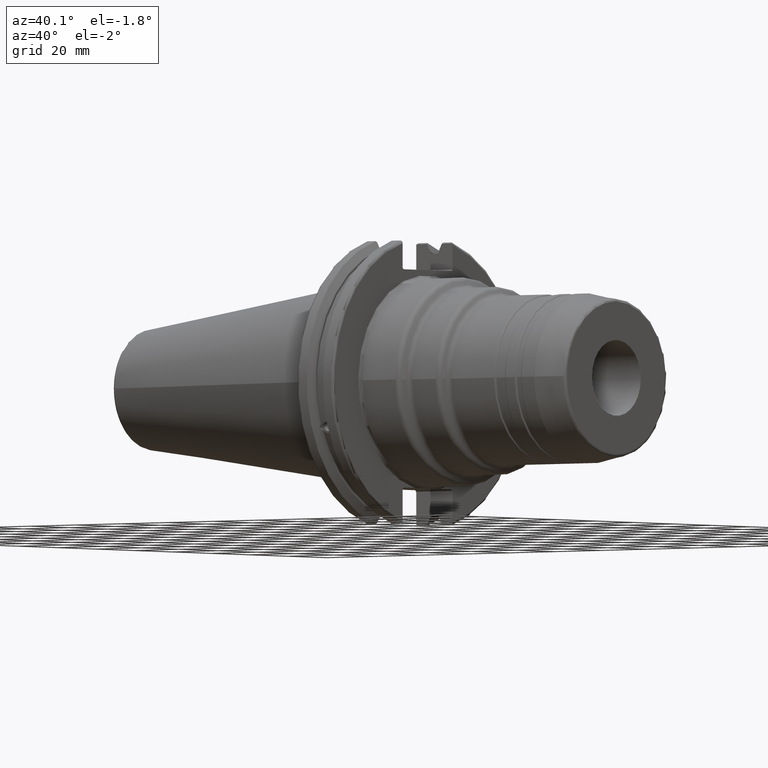
[diagram: clean part render]
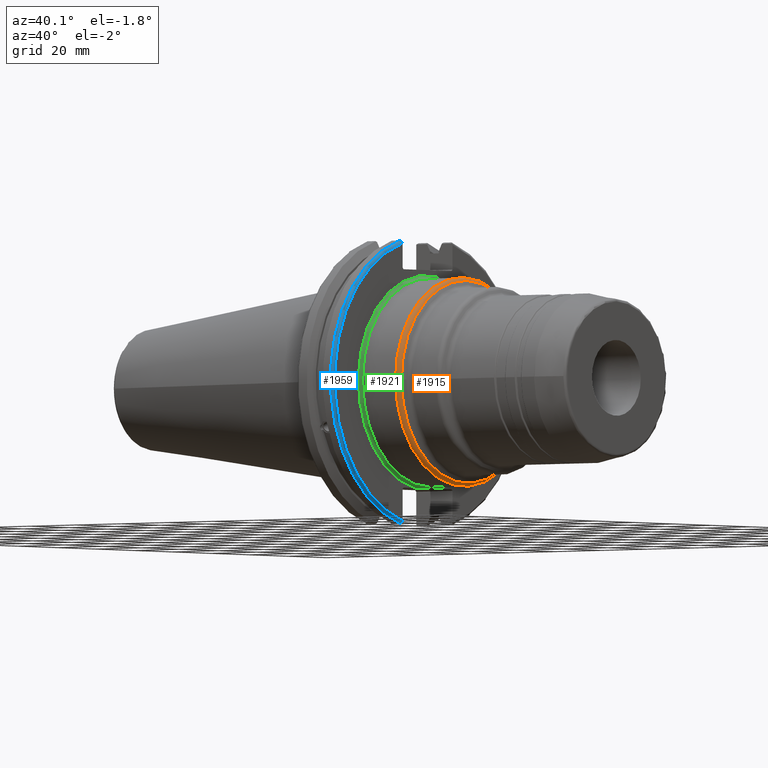
[diagram: same view with three faces highlighted in distinct colors, each labeled with its STEP entity id]
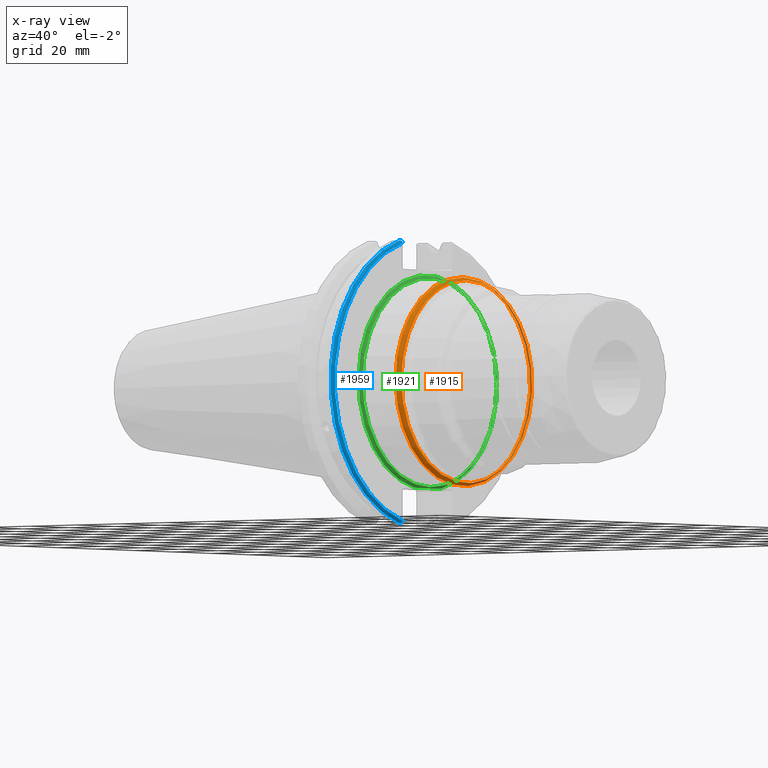
[diagram: x-ray of the same camera — body ghosted, the three highlighted faces saturated]
A machine part, auxiliary view with three faces highlighted in distinct colors.
The next image is the same camera in x-ray (body ghosted, the three faces saturated) — at least one of them is partly hidden behind the body in this view.
Their STEP definitions:

[orange] entity #1915 — the highlighted toroidal blend (fillet) surface has major radius 32.95 mm and minor (blend) radius 2 mm.
#81=TOROIDAL_SURFACE('',#2112,32.95,2.);
#195=FACE_OUTER_BOUND('',#307,.T.);
#307=EDGE_LOOP('',(#1412,#1413,#1414,#1415,#1416,#1417));
#679=CIRCLE('',#2108,33.95);
#680=CIRCLE('',#2109,33.95);
#682=CIRCLE('',#2113,2.);
#683=CIRCLE('',#2114,34.95);
#684=CIRCLE('',#2115,34.95);
#810=VERTEX_POINT('',#3104);
#811=VERTEX_POINT('',#3106);
#812=VERTEX_POINT('',#3112);
#813=VERTEX_POINT('',#3114);
#1036=EDGE_CURVE('',#811,#810,#679,.T.);
#1037=EDGE_CURVE('',#810,#811,#680,.T.);
#1039=EDGE_CURVE('',#811,#812,#682,.T.);
#1040=EDGE_CURVE('',#812,#813,#683,.T.);
#1041=EDGE_CURVE('',#813,#812,#684,.T.);
#1412=ORIENTED_EDGE('',*,*,#1036,.T.);
#1413=ORIENTED_EDGE('',*,*,#1037,.T.);
#1414=ORIENTED_EDGE('',*,*,#1039,.T.);
#1415=ORIENTED_EDGE('',*,*,#1040,.T.);
#1416=ORIENTED_EDGE('',*,*,#1041,.T.);
#1417=ORIENTED_EDGE('',*,*,#1039,.F.);
#1915=ADVANCED_FACE('',(#195),#81,.T.);
#2108=AXIS2_PLACEMENT_3D('',#3107,#2460,#2461);
#2109=AXIS2_PLACEMENT_3D('',#3108,#2462,#2463);
#2112=AXIS2_PLACEMENT_3D('',#3111,#2468,#2469);
#2113=AXIS2_PLACEMENT_3D('',#3113,#2470,#2471);
#2114=AXIS2_PLACEMENT_3D('',#3115,#2472,#2473);
#2115=AXIS2_PLACEMENT_3D('',#3116,#2474,#2475);
#2460=DIRECTION('center_axis',(-1.,0.,0.));
#2461=DIRECTION('ref_axis',(0.,-1.,3.06161699786838E-17));
#2462=DIRECTION('center_axis',(-1.,0.,0.));
#2463=DIRECTION('ref_axis',(0.,-1.,3.06161699786838E-17));
#2468=DIRECTION('center_axis',(1.,0.,0.));
#2469=DIRECTION('ref_axis',(0.,0.,-1.));
#2470=DIRECTION('center_axis',(0.,-1.,-1.22464679914735E-16));
#2471=DIRECTION('ref_axis',(0.,-1.22464679914735E-16,1.));
#2472=DIRECTION('center_axis',(1.,0.,0.));
#2473=DIRECTION('ref_axis',(0.,-1.,1.83697019872103E-16));
#2474=DIRECTION('center_axis',(1.,0.,0.));
#2475=DIRECTION('ref_axis',(0.,-1.,1.83697019872103E-16));
#3104=CARTESIAN_POINT('',(36.1854918404854,-33.95,-4.15767588310526E-15));
#3106=CARTESIAN_POINT('',(36.1854918404854,-4.15767588310526E-15,33.95));
#3107=CARTESIAN_POINT('Origin',(36.1854918404854,0.,-5.19709485388158E-15));
#3108=CARTESIAN_POINT('Origin',(36.1854918404854,0.,-5.19709485388158E-15));
#3111=CARTESIAN_POINT('Origin',(34.4534410329165,0.,0.));
#3112=CARTESIAN_POINT('',(34.4534410329165,-4.28014056302E-15,34.95));
#3113=CARTESIAN_POINT('Origin',(34.4534410329165,-4.03521120319053E-15,
32.95));
#3114=CARTESIAN_POINT('',(34.4534410329165,-34.95,-4.28014056302E-15));
#3115=CARTESIAN_POINT('Origin',(34.4534410329165,0.,0.));
#3116=CARTESIAN_POINT('Origin',(34.4534410329165,0.,0.));

[blue] entity #1959 — the highlighted toroidal blend (fillet) surface has major radius 48.2125 mm and minor (blend) radius 1 mm.
#87=TOROIDAL_SURFACE('',#2210,48.2125,1.);
#158=B_SPLINE_CURVE_WITH_KNOTS('',3,(#3750,#3751,#3752,#3753,#3754,#3755),
 .UNSPECIFIED.,.F.,.F.,(4,2,4),(0.097707143645253,0.112358403262293,0.150882178076498),
 .UNSPECIFIED.);
#159=B_SPLINE_CURVE_WITH_KNOTS('',3,(#3757,#3758,#3759,#3760,#3761,#3762),
 .UNSPECIFIED.,.F.,.F.,(4,2,4),(0.452859694247731,0.491383469061936,0.506034728678978),
 .UNSPECIFIED.);
#160=B_SPLINE_CURVE_WITH_KNOTS('',3,(#3764,#3765,#3766,#3767,#3768,#3769,
#3770,#3771),.UNSPECIFIED.,.F.,.F.,(4,2,2,4),(-0.104075769062722,-0.0730268503455477,
-0.0343639873656263,0.),.UNSPECIFIED.);
#161=B_SPLINE_CURVE_WITH_KNOTS('',3,(#3774,#3775,#3776,#3777,#3778,#3779,
#3780,#3781),.UNSPECIFIED.,.F.,.F.,(4,2,2,4),(0.,0.0364336453281818,0.0778720357014993,
0.104197480645881),.UNSPECIFIED.);
#239=FACE_OUTER_BOUND('',#365,.T.);
#365=EDGE_LOOP('',(#1656,#1657,#1658,#1659,#1660,#1661));
#733=CIRCLE('',#2209,48.2125);
#734=CIRCLE('',#2211,49.2125);
#919=VERTEX_POINT('',#3739);
#920=VERTEX_POINT('',#3741);
#923=VERTEX_POINT('',#3749);
#924=VERTEX_POINT('',#3756);
#925=VERTEX_POINT('',#3763);
#926=VERTEX_POINT('',#3772);
#1182=EDGE_CURVE('',#920,#919,#733,.T.);
#1186=EDGE_CURVE('',#923,#920,#158,.T.);
#1187=EDGE_CURVE('',#919,#924,#159,.T.);
#1188=EDGE_CURVE('',#924,#925,#160,.T.);
#1189=EDGE_CURVE('',#925,#926,#734,.T.);
#1190=EDGE_CURVE('',#926,#923,#161,.T.);
#1656=ORIENTED_EDGE('',*,*,#1186,.T.);
#1657=ORIENTED_EDGE('',*,*,#1182,.T.);
#1658=ORIENTED_EDGE('',*,*,#1187,.T.);
#1659=ORIENTED_EDGE('',*,*,#1188,.T.);
#1660=ORIENTED_EDGE('',*,*,#1189,.T.);
#1661=ORIENTED_EDGE('',*,*,#1190,.T.);
#1959=ADVANCED_FACE('',(#239),#87,.T.);
#2209=AXIS2_PLACEMENT_3D('',#3742,#2717,#2718);
#2210=AXIS2_PLACEMENT_3D('',#3748,#2722,#2723);
#2211=AXIS2_PLACEMENT_3D('',#3773,#2724,#2725);
#2717=DIRECTION('center_axis',(-1.,0.,0.));
#2718=DIRECTION('ref_axis',(0.,-1.,1.60812264967664E-16));
#2722=DIRECTION('center_axis',(1.,0.,0.));
#2723=DIRECTION('ref_axis',(0.,0.,-1.));
#2724=DIRECTION('center_axis',(1.,0.,0.));
#2725=DIRECTION('ref_axis',(0.,-1.,1.60812264967664E-16));
#3739=CARTESIAN_POINT('',(19.05,-12.95,46.4407434937254));
#3741=CARTESIAN_POINT('',(19.05,-12.95,-46.4407434937254));
#3742=CARTESIAN_POINT('Origin',(19.05,0.,0.));
#3748=CARTESIAN_POINT('Origin',(18.05,0.,0.));
#3749=CARTESIAN_POINT('',(18.9055020570566,-12.95,-46.9780755322917));
#3750=CARTESIAN_POINT('Ctrl Pts',(18.9055020570566,-12.95,-46.9780755322917));
#3751=CARTESIAN_POINT('Ctrl Pts',(18.9322353702005,-12.95,-46.9322596399785));
#3752=CARTESIAN_POINT('Ctrl Pts',(18.9549831813775,-12.95,-46.8849952622217));
#3753=CARTESIAN_POINT('Ctrl Pts',(19.0209992543299,-12.95,-46.7204975987179));
#3754=CARTESIAN_POINT('Ctrl Pts',(19.05,-12.95,-46.5691560764394));
#3755=CARTESIAN_POINT('Ctrl Pts',(19.05,-12.95,-46.4407434937254));
#3756=CARTESIAN_POINT('',(18.9055020570566,-12.95,46.9780755322918));
#3757=CARTESIAN_POINT('Ctrl Pts',(19.05,-12.95,46.4407434937254));
#3758=CARTESIAN_POINT('Ctrl Pts',(19.05,-12.95,46.5691560764394));
#3759=CARTESIAN_POINT('Ctrl Pts',(19.0209992543299,-12.95,46.7204975987179));
#3760=CARTESIAN_POINT('Ctrl Pts',(18.9549831813775,-12.95,46.8849952622217));
#3761=CARTESIAN_POINT('Ctrl Pts',(18.9322353702005,-12.95,46.9322596399785));
#3762=CARTESIAN_POINT('Ctrl Pts',(18.9055020570566,-12.95,46.9780755322918));
#3763=CARTESIAN_POINT('',(18.05,-13.4317035994433,47.3440544806494));
#3764=CARTESIAN_POINT('Ctrl Pts',(18.9055020570566,-12.95,46.9780755322918));
#3765=CARTESIAN_POINT('Ctrl Pts',(18.8571496772125,-13.0300321736484,47.0388807469102));
#3766=CARTESIAN_POINT('Ctrl Pts',(18.792640282015,-13.1083611826073,47.0983919657547));
#3767=CARTESIAN_POINT('Ctrl Pts',(18.6399248789208,-13.2478194810695,47.2043467509586));
#3768=CARTESIAN_POINT('Ctrl Pts',(18.5186188350904,-13.3242014686233,47.2623787015413));
#3769=CARTESIAN_POINT('Ctrl Pts',(18.2983889675417,-13.4067722493645,47.3251126473446));
#3770=CARTESIAN_POINT('Ctrl Pts',(18.1645466245521,-13.4317035994433,47.3440544806494));
#3771=CARTESIAN_POINT('Ctrl Pts',(18.05,-13.4317035994433,47.3440544806494));
#3772=CARTESIAN_POINT('',(18.05,-13.4317035994433,-47.3440544806494));
#3773=CARTESIAN_POINT('Origin',(18.05,0.,0.));
#3774=CARTESIAN_POINT('Ctrl Pts',(18.05,-13.4317035994433,-47.3440544806494));
#3775=CARTESIAN_POINT('Ctrl Pts',(18.1714454844273,-13.4317035994433,-47.3440544806494));
#3776=CARTESIAN_POINT('Ctrl Pts',(18.3128758164404,-13.4037095171132,-47.3227857070233));
#3777=CARTESIAN_POINT('Ctrl Pts',(18.54495745946,-13.3111366376071,-47.2524525703658));
#3778=CARTESIAN_POINT('Ctrl Pts',(18.6710431007969,-13.2254637570201,-47.1873617743322));
#3779=CARTESIAN_POINT('Ctrl Pts',(18.811782280389,-13.0847856162862,-47.0804802022157));
#3780=CARTESIAN_POINT('Ctrl Pts',(18.8641312352177,-13.0184763978125,-47.0301011349397));
#3781=CARTESIAN_POINT('Ctrl Pts',(18.9055020570566,-12.95,-46.9780755322917));

[green] entity #1921 — the highlighted toroidal blend (fillet) surface has major radius 35.95 mm and minor (blend) radius 1 mm.
#84=TOROIDAL_SURFACE('',#2131,35.95,1.);
#133=B_SPLINE_CURVE_WITH_KNOTS('',3,(#3146,#3147,#3148,#3149,#3150,#3151),
 .UNSPECIFIED.,.F.,.F.,(4,2,4),(2.11443246331657,2.54818762926138,2.75008152916877),
 .UNSPECIFIED.);
#134=B_SPLINE_CURVE_WITH_KNOTS('',3,(#3154,#3155,#3156,#3157,#3158,#3159),
 .UNSPECIFIED.,.F.,.F.,(4,2,4),(1.47878339746437,1.68067729737176,2.11443246331657),
 .UNSPECIFIED.);
#201=FACE_OUTER_BOUND('',#314,.T.);
#314=EDGE_LOOP('',(#1443,#1444,#1445,#1446,#1447,#1448,#1449));
#685=CIRCLE('',#2117,34.95);
#686=CIRCLE('',#2118,34.95);
#695=CIRCLE('',#2132,1.);
#696=CIRCLE('',#2133,35.95);
#814=VERTEX_POINT('',#3118);
#815=VERTEX_POINT('',#3120);
#822=VERTEX_POINT('',#3143);
#823=VERTEX_POINT('',#3145);
#824=VERTEX_POINT('',#3152);
#1043=EDGE_CURVE('',#815,#814,#685,.T.);
#1044=EDGE_CURVE('',#814,#815,#686,.T.);
#1054=EDGE_CURVE('',#815,#822,#695,.T.);
#1055=EDGE_CURVE('',#823,#822,#133,.F.);
#1056=EDGE_CURVE('',#823,#824,#696,.T.);
#1057=EDGE_CURVE('',#822,#824,#134,.F.);
#1443=ORIENTED_EDGE('',*,*,#1044,.T.);
#1444=ORIENTED_EDGE('',*,*,#1054,.T.);
#1445=ORIENTED_EDGE('',*,*,#1055,.F.);
#1446=ORIENTED_EDGE('',*,*,#1056,.T.);
#1447=ORIENTED_EDGE('',*,*,#1057,.F.);
#1448=ORIENTED_EDGE('',*,*,#1054,.F.);
#1449=ORIENTED_EDGE('',*,*,#1043,.T.);
#1921=ADVANCED_FACE('',(#201),#84,.F.);
#2117=AXIS2_PLACEMENT_3D('',#3121,#2479,#2480);
#2118=AXIS2_PLACEMENT_3D('',#3122,#2481,#2482);
#2131=AXIS2_PLACEMENT_3D('',#3142,#2508,#2509);
#2132=AXIS2_PLACEMENT_3D('',#3144,#2510,#2511);
#2133=AXIS2_PLACEMENT_3D('',#3153,#2512,#2513);
#2479=DIRECTION('center_axis',(-1.,0.,0.));
#2480=DIRECTION('ref_axis',(0.,-1.,-1.22464679914735E-16));
#2481=DIRECTION('center_axis',(-1.,0.,0.));
#2482=DIRECTION('ref_axis',(0.,-1.,-1.22464679914735E-16));
#2508=DIRECTION('center_axis',(-1.,0.,0.));
#2509=DIRECTION('ref_axis',(0.,0.,1.));
#2510=DIRECTION('center_axis',(0.,-1.,1.22464679914735E-16));
#2511=DIRECTION('ref_axis',(0.,-1.22464679914735E-16,-1.));
#2512=DIRECTION('center_axis',(1.,0.,0.));
#2513=DIRECTION('ref_axis',(0.,-1.,-1.22464679914735E-16));
#3118=CARTESIAN_POINT('',(20.05,-34.95,-4.28014056302E-15));
#3120=CARTESIAN_POINT('',(20.05,-4.28014056302E-15,-34.95));
#3121=CARTESIAN_POINT('Origin',(20.05,0.,0.));
#3122=CARTESIAN_POINT('Origin',(20.05,0.,0.));
#3142=CARTESIAN_POINT('Origin',(20.05,0.,0.));
#3143=CARTESIAN_POINT('',(19.2849745102286,-2.85575838492554E-15,-35.306));
#3144=CARTESIAN_POINT('Origin',(20.05,-4.40260524293474E-15,-35.95));
#3145=CARTESIAN_POINT('',(19.05,6.77413197391373,-35.306));
#3146=CARTESIAN_POINT('Ctrl Pts',(19.2849745102286,-1.38777878078145E-15,
-35.306));
#3147=CARTESIAN_POINT('Ctrl Pts',(19.2849745102286,1.44585055314937,-35.306));
#3148=CARTESIAN_POINT('Ctrl Pts',(19.1789776235315,3.17763037857509,-35.306));
#3149=CARTESIAN_POINT('Ctrl Pts',(19.078741732218,5.29408833119075,-35.306));
#3150=CARTESIAN_POINT('Ctrl Pts',(19.05,6.10115230755578,-35.306));
#3151=CARTESIAN_POINT('Ctrl Pts',(19.05,6.77413197391373,-35.306));
#3152=CARTESIAN_POINT('',(19.05,-6.77413197391373,-35.306));
#3153=CARTESIAN_POINT('Origin',(19.05,0.,0.));
#3154=CARTESIAN_POINT('Ctrl Pts',(19.05,-6.77413197391373,-35.306));
#3155=CARTESIAN_POINT('Ctrl Pts',(19.05,-6.10115230755578,-35.306));
#3156=CARTESIAN_POINT('Ctrl Pts',(19.078741732218,-5.29408833119075,-35.306));
#3157=CARTESIAN_POINT('Ctrl Pts',(19.1789776235315,-3.17763037857509,-35.306));
#3158=CARTESIAN_POINT('Ctrl Pts',(19.2849745102286,-1.44585055314937,-35.306));
#3159=CARTESIAN_POINT('Ctrl Pts',(19.2849745102286,1.11022302462516E-15,
-35.306));